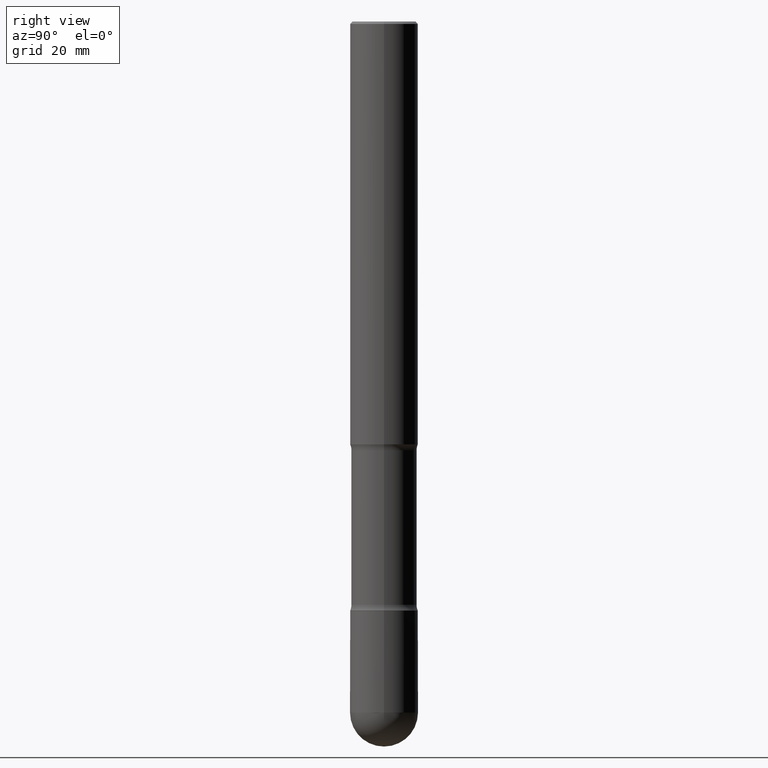
[diagram: clean part render]
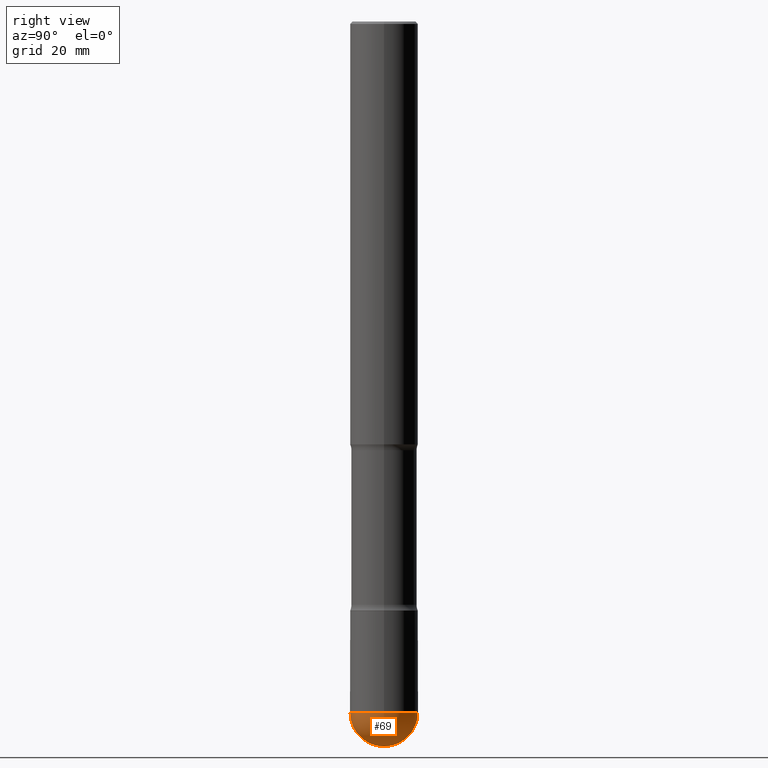
[diagram: same view with one face highlighted and labeled with its STEP entity id]
A machine part, right view. The second image highlights one B-rep face of the part: STEP entity #69.
In plain terms, the highlighted spherical surface has radius 7.1437 mm.
Its self-contained STEP definition (entity closure, byte-faithful):
#32 = CARTESIAN_POINT ( 'NONE',  ( 1.396097318348808052E-28, -2.000135209773525874E-14, -5.718750000000000000 ) ) ;
#56 = CARTESIAN_POINT ( 'NONE',  ( 1.963958253099395041E-15, 0.2812499999999790168, -5.718750000000001776 ) ) ;
#58 = ORIENTED_EDGE ( 'NONE', *, *, #280, .T. ) ;
#62 = CIRCLE ( 'NONE', #248, 0.2812499999999990008 ) ;
#69 = ADVANCED_FACE ( 'NONE', ( #379 ), #237, .T. ) ;
#82 = CARTESIAN_POINT ( 'NONE',  ( 0.2812499999999989453, -2.045789846978405097E-14, -5.718750000000000000 ) ) ;
#121 = DIRECTION ( 'NONE',  ( -2.445468806185136597E-29, 3.491481338843145583E-15, 1.000000000000000000 ) ) ;
#132 = DIRECTION ( 'NONE',  ( -1.000000000000000000, 7.105427357601001070E-15, -4.926315508542082329E-29 ) ) ;
#134 = ORIENTED_EDGE ( 'NONE', *, *, #330, .F. ) ;
#154 = CARTESIAN_POINT ( 'NONE',  ( 1.398502473537124991E-28, -1.996690890650924185E-14, -5.718750000000000000 ) ) ;
#171 = AXIS2_PLACEMENT_3D ( 'NONE', #154, #514, #500 ) ;
#179 = EDGE_LOOP ( 'NONE', ( #487, #58, #134, #270 ) ) ;
#184 = AXIS2_PLACEMENT_3D ( 'NONE', #443, #132, #224 ) ;
#199 = DIRECTION ( 'NONE',  ( 1.000000000000000000, -6.982962677686265922E-15, 4.883557194083112340E-29 ) ) ;
#213 = CIRCLE ( 'NONE', #184, 0.2812499999999990008 ) ;
#222 = CIRCLE ( 'NONE', #491, 0.2812499999999989453 ) ;
#224 = DIRECTION ( 'NONE',  ( -7.105427357601001859E-15, -1.000000000000000000, 0.000000000000000000 ) ) ;
#237 = SPHERICAL_SURFACE ( 'NONE', #398, 0.2812499999999990008 ) ;
#246 = CARTESIAN_POINT ( 'NONE',  ( -1.998401444325134650E-15, -0.2812500000000189848, -5.718749999999999112 ) ) ;
#247 = DIRECTION ( 'NONE',  ( 1.000000000000000000, -6.982962677686261977E-15, 0.000000000000000000 ) ) ;
#248 = AXIS2_PLACEMENT_3D ( 'NONE', #32, #199, #374 ) ;
#270 = ORIENTED_EDGE ( 'NONE', *, *, #300, .F. ) ;
#280 = EDGE_CURVE ( 'NONE', #282, #446, #62, .T. ) ;
#282 = VERTEX_POINT ( 'NONE', #548 ) ;
#300 = EDGE_CURVE ( 'NONE', #366, #401, #450, .T. ) ;
#330 = EDGE_CURVE ( 'NONE', #401, #446, #222, .T. ) ;
#334 = DIRECTION ( 'NONE',  ( 6.982962677686265922E-15, 1.000000000000000000, -3.885294924322521099E-15 ) ) ;
#366 = VERTEX_POINT ( 'NONE', #246 ) ;
#374 = DIRECTION ( 'NONE',  ( 6.982962677686265922E-15, 1.000000000000000000, 0.000000000000000000 ) ) ;
#379 = FACE_OUTER_BOUND ( 'NONE', #179, .T. ) ;
#398 = AXIS2_PLACEMENT_3D ( 'NONE', #411, #512, #334 ) ;
#401 = VERTEX_POINT ( 'NONE', #82 ) ;
#411 = CARTESIAN_POINT ( 'NONE',  ( 1.396097318348808052E-28, -2.000135209773525874E-14, -5.718750000000000000 ) ) ;
#427 = CARTESIAN_POINT ( 'NONE',  ( 1.398502473537124991E-28, -1.996690890650924185E-14, -5.718750000000000000 ) ) ;
#443 = CARTESIAN_POINT ( 'NONE',  ( 1.396097318348808052E-28, -2.000135209773525874E-14, -5.718750000000000000 ) ) ;
#446 = VERTEX_POINT ( 'NONE', #56 ) ;
#450 = CIRCLE ( 'NONE', #171, 0.2812499999999989453 ) ;
#487 = ORIENTED_EDGE ( 'NONE', *, *, #523, .F. ) ;
#491 = AXIS2_PLACEMENT_3D ( 'NONE', #427, #121, #247 ) ;
#500 = DIRECTION ( 'NONE',  ( 1.000000000000000000, -6.982962677686261977E-15, 0.000000000000000000 ) ) ;
#512 = DIRECTION ( 'NONE',  ( -1.000000000000000000, 6.982962677686265922E-15, -4.883557194083112901E-29 ) ) ;
#514 = DIRECTION ( 'NONE',  ( -2.445468806185136597E-29, 3.491481338843145583E-15, 1.000000000000000000 ) ) ;
#523 = EDGE_CURVE ( 'NONE', #282, #366, #213, .T. ) ;
#548 = CARTESIAN_POINT ( 'NONE',  ( 1.466078706116923264E-28, -2.096610962867187958E-14, -5.999999999999999112 ) ) ;